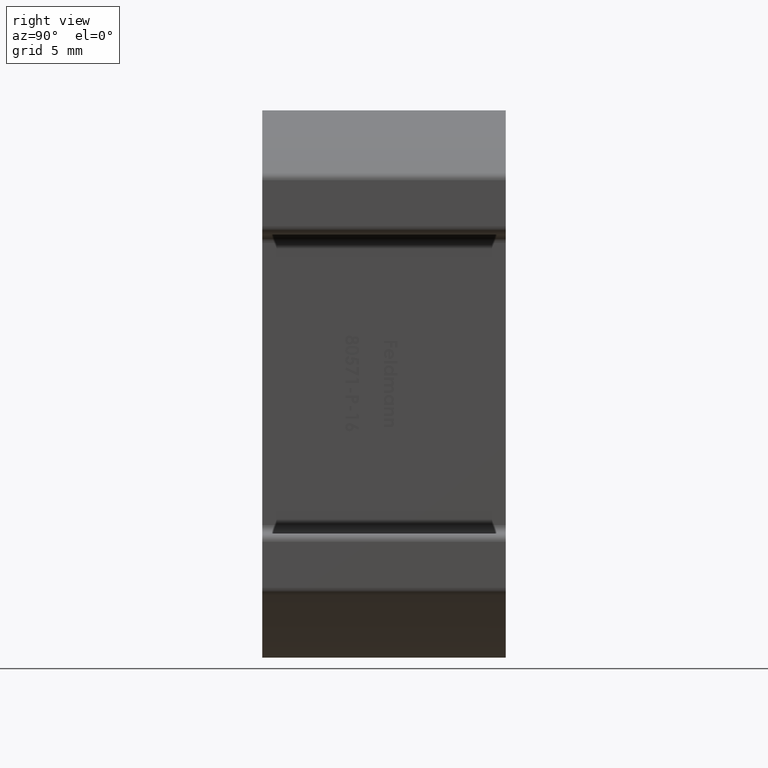
[diagram: clean part render]
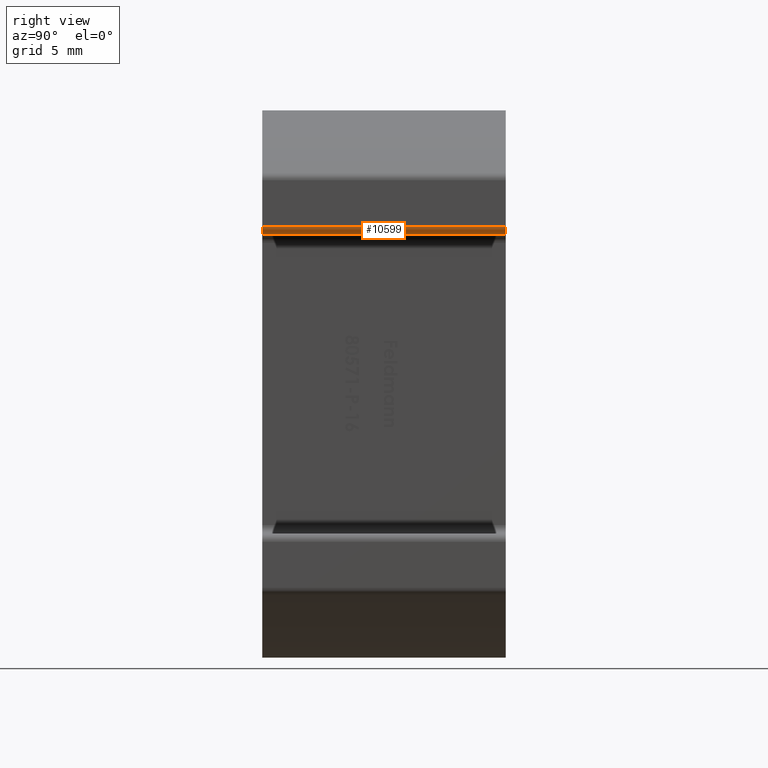
[diagram: same view with one face highlighted and labeled with its STEP entity id]
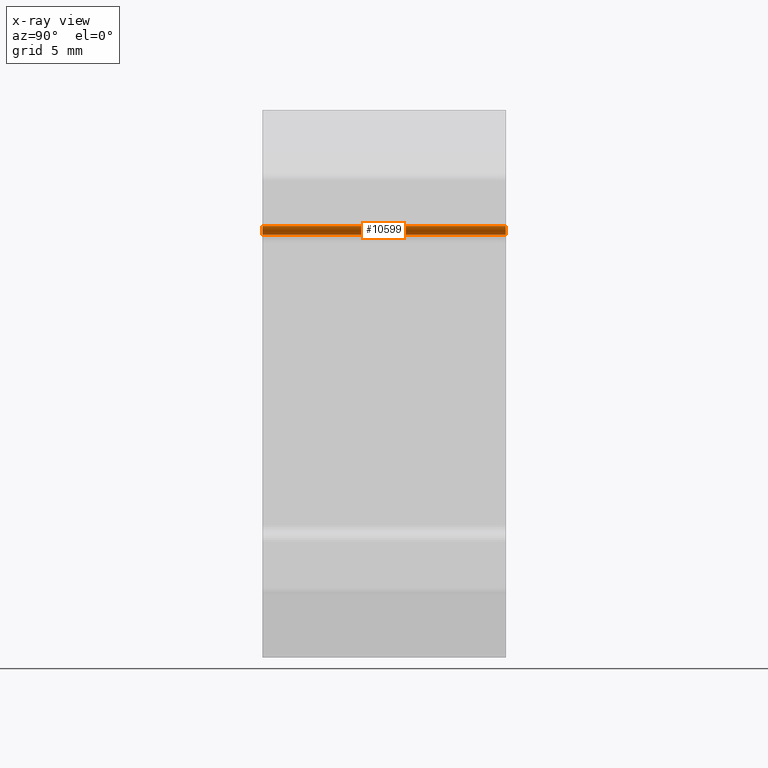
[diagram: x-ray of the same camera — body ghosted, the highlighted face saturated]
A machine part, right view. The second image highlights one B-rep face of the part: STEP entity #10599.
The next image is the same camera in x-ray: the body ghosted, the highlighted face saturated — about 0% of this face is hidden behind the body in this view.
In plain terms, the highlighted cylindrical surface (edge-blend (fillet) strip) has radius 0.5 mm, axis along (0, -1, 0).
Its self-contained STEP definition (entity closure, byte-faithful):
#29 = CIRCLE ( 'NONE', #1234, 0.5000000000000004400 ) ;
#310 = DIRECTION ( 'NONE',  ( 0.0000000000000000000, 0.0000000000000000000, -1.000000000000000000 ) ) ;
#446 = DIRECTION ( 'NONE',  ( 0.0000000000000000000, -1.000000000000000000, 0.0000000000000000000 ) ) ;
#734 = ORIENTED_EDGE ( 'NONE', *, *, #8776, .F. ) ;
#1234 = AXIS2_PLACEMENT_3D ( 'NONE', #6848, #9744, #3919 ) ;
#1278 = DIRECTION ( 'NONE',  ( -0.0000000000000000000, -1.000000000000000000, 0.0000000000000000000 ) ) ;
#1318 = VECTOR ( 'NONE', #3186, 1000.000000000000000 ) ;
#2236 = CARTESIAN_POINT ( 'NONE',  ( 12.49999999999999800, 7.250000000000000000, 9.400000000000000400 ) ) ;
#2580 = ORIENTED_EDGE ( 'NONE', *, *, #2882, .F. ) ;
#2882 = EDGE_CURVE ( 'NONE', #10868, #7167, #6822, .T. ) ;
#3186 = DIRECTION ( 'NONE',  ( -0.0000000000000000000, 1.000000000000000000, -0.0000000000000000000 ) ) ;
#3872 = ORIENTED_EDGE ( 'NONE', *, *, #4254, .F. ) ;
#3919 = DIRECTION ( 'NONE',  ( 0.0000000000000000000, 0.0000000000000000000, -1.000000000000000000 ) ) ;
#4254 = EDGE_CURVE ( 'NONE', #7167, #8809, #7403, .T. ) ;
#4923 = CARTESIAN_POINT ( 'NONE',  ( 12.49999999999999800, -7.250000000000000000, 9.400000000000000400 ) ) ;
#5841 = AXIS2_PLACEMENT_3D ( 'NONE', #8240, #11213, #11090 ) ;
#6822 = LINE ( 'NONE', #9934, #10817 ) ;
#6848 = CARTESIAN_POINT ( 'NONE',  ( 11.99999999999999800, 7.250000000000000000, 9.400000000000000400 ) ) ;
#7167 = VERTEX_POINT ( 'NONE', #7632 ) ;
#7403 = CIRCLE ( 'NONE', #8797, 0.5000000000000004400 ) ;
#7627 = ORIENTED_EDGE ( 'NONE', *, *, #11577, .F. ) ;
#7632 = CARTESIAN_POINT ( 'NONE',  ( 11.99999999999999800, -7.250000000000000000, 8.900000000000000400 ) ) ;
#7898 = CARTESIAN_POINT ( 'NONE',  ( 11.99999999999999800, -7.250000000000000000, 9.400000000000000400 ) ) ;
#8032 = CARTESIAN_POINT ( 'NONE',  ( 12.49999999999999800, 7.250000000000000000, 9.400000000000000400 ) ) ;
#8240 = CARTESIAN_POINT ( 'NONE',  ( 11.99999999999999800, 7.250000000000000000, 9.400000000000000400 ) ) ;
#8544 = VERTEX_POINT ( 'NONE', #8032 ) ;
#8776 = EDGE_CURVE ( 'NONE', #8544, #10868, #29, .T. ) ;
#8797 = AXIS2_PLACEMENT_3D ( 'NONE', #7898, #1278, #310 ) ;
#8809 = VERTEX_POINT ( 'NONE', #4923 ) ;
#8997 = EDGE_LOOP ( 'NONE', ( #734, #7627, #3872, #2580 ) ) ;
#9744 = DIRECTION ( 'NONE',  ( 0.0000000000000000000, 1.000000000000000000, -0.0000000000000000000 ) ) ;
#9934 = CARTESIAN_POINT ( 'NONE',  ( 11.99999999999999800, 7.250000000000000000, 8.900000000000000400 ) ) ;
#10599 = ADVANCED_FACE ( 'NONE', ( #12054 ), #11188, .T. ) ;
#10817 = VECTOR ( 'NONE', #446, 1000.000000000000000 ) ;
#10868 = VERTEX_POINT ( 'NONE', #11273 ) ;
#11090 = DIRECTION ( 'NONE',  ( 0.0000000000000000000, 0.0000000000000000000, -1.000000000000000000 ) ) ;
#11188 = CYLINDRICAL_SURFACE ( 'NONE', #5841, 0.5000000000000004400 ) ;
#11213 = DIRECTION ( 'NONE',  ( 0.0000000000000000000, -1.000000000000000000, 0.0000000000000000000 ) ) ;
#11273 = CARTESIAN_POINT ( 'NONE',  ( 11.99999999999999800, 7.250000000000000000, 8.900000000000000400 ) ) ;
#11577 = EDGE_CURVE ( 'NONE', #8809, #8544, #11740, .T. ) ;
#11740 = LINE ( 'NONE', #2236, #1318 ) ;
#12054 = FACE_OUTER_BOUND ( 'NONE', #8997, .T. ) ;